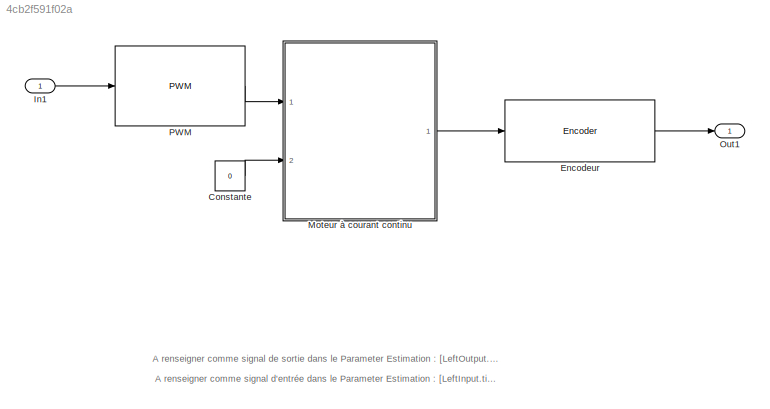
MODEL slx_4cb2f591f02a
KIND model
CONFIG AbsTol = auto
CONFIG FixedStep = -0.01
CONFIG MaxStep = auto
CONFIG MinStep = auto
CONFIG PostLoadFcn = load('LeftInput_Measures.mat');\nload('LeftOutput_Measures.mat');\nParametres_Rover
CONFIG RelTol = 1e-3
CONFIG SampleTimeConstraint = Unconstrained
CONFIG Solver = ode23t
CONFIG SolverMode = Auto
CONFIG SolverName = ode23t
CONFIG StartTime = 0.0
CONFIG StopTime = 10.0
BLOCK [Constant] Constante
  Value = 0
BLOCK [Reference] Encodeur  REF=SingleMotor_Duty_to_inc/Encoder
  EncRes = EncRes
  Ports = [1, 1]
  SourceBlock = SingleMotor_Duty_to_inc/Encoder
BLOCK [Inport] In1
  IconDisplay = Port number
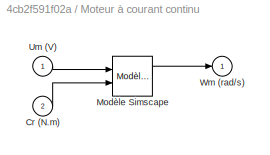
BLOCK [SubSystem] Moteur à courant continu
  AttributesFormatString = %<BlockChoice>
  BlockChoice = Modèle Simscape
  MemberBlocks = Modèle Simscape,Modèle Simulink
  Ports = [2, 1]
  RequestExecContextInheritance = off
  TemplateBlock = SingleMotor_V_to_rads/DC Motor
BLOCK [Inport] Moteur à courant continu/Cr (N.m)
  IconDisplay = Port number
  Port = 2
BLOCK [Reference] Moteur à courant continu/Modèle Simscape  REF=SingleMotor_V_to_rads/Modèle Simscape
  Jm_lib = Jm
  Kphi_lib = Kphi
  Lm_lib = Lm
  Ports = [2, 1]
  Rm_lib = Rm
  SourceBlock = SingleMotor_V_to_rads/Modèle Simscape
  bm_lib = bm
BLOCK [Inport] Moteur à courant continu/Um (V)
  IconDisplay = Port number
BLOCK [Outport] Moteur à courant continu/Wm (rad//s)
  IconDisplay = Port number
BLOCK [Outport] Out1
  IconDisplay = Port number
BLOCK [Reference] PWM  REF=SingleMotor_Duty_to_inc/PWM
  FreqTriangle = FreqPWM
  Ports = [1, 1]
  SourceBlock = SingleMotor_Duty_to_inc/PWM
ANNOTATION (root): A renseigner comme signal d'entrée dans le Parameter Estimation : [LeftInput.time,LeftInput.signals.values]
ANNOTATION (root): A renseigner comme signal de sortie dans le Parameter Estimation : [LeftOutput.time,LeftOutput.signals.values]
LINE Constante:1 -> Moteur à courant continu:2
LINE Encodeur:1 -> Out1:1
LINE In1:1 -> PWM:1
LINE Moteur à courant continu:1 -> Encodeur:1
LINE PWM:1 -> Moteur à courant continu:1
